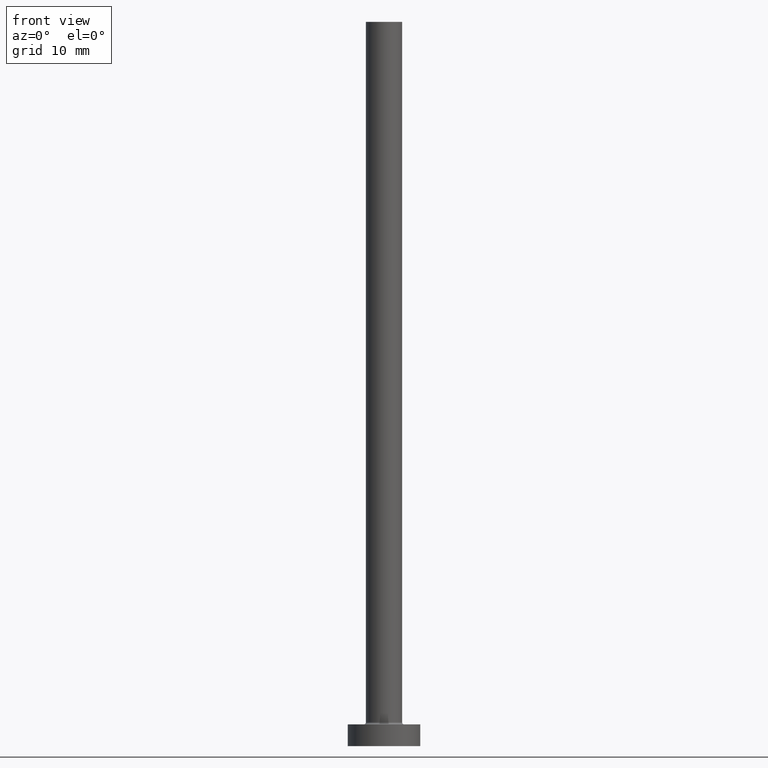
[diagram: clean part render]
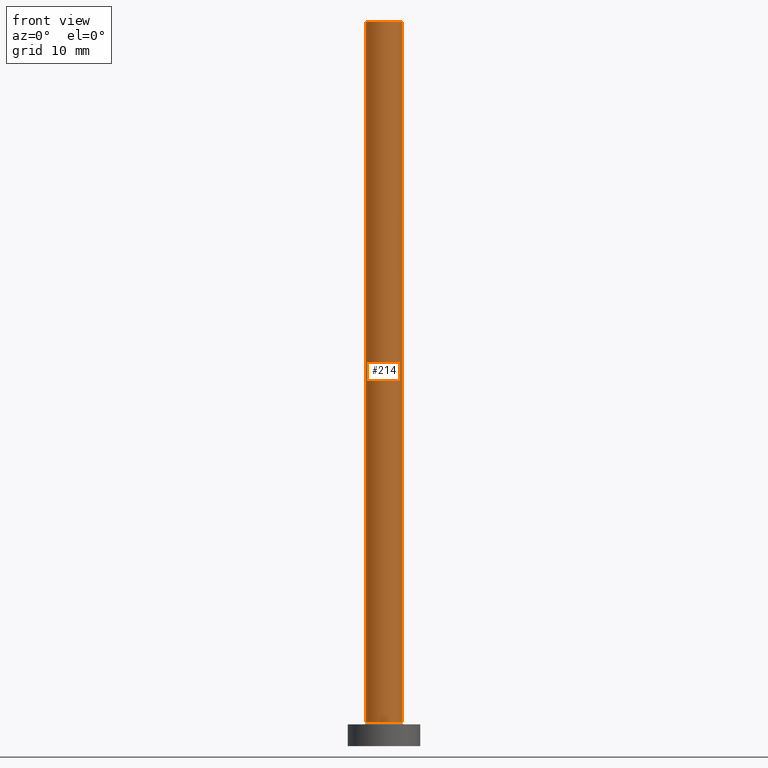
[diagram: same view with one face highlighted and labeled with its STEP entity id]
A machine part, front view. The second image highlights one B-rep face of the part: STEP entity #214.
In plain terms, the highlighted cylindrical surface (edge-blend (fillet) strip) has radius 2.5 mm, axis along (-0, -0, -1).
Its self-contained STEP definition (entity closure, byte-faithful):
#2 = CARTESIAN_POINT ( 'NONE',  ( 0.000000000000000000, 0.000000000000000000, 100.0000000000000000 ) ) ;
#32 = AXIS2_PLACEMENT_3D ( 'NONE', #457, #247, #215 ) ;
#47 = VERTEX_POINT ( 'NONE', #108 ) ;
#48 = LINE ( 'NONE', #84, #279 ) ;
#52 = DIRECTION ( 'NONE',  ( 1.000000000000000000, 0.000000000000000000, 0.000000000000000000 ) ) ;
#62 = AXIS2_PLACEMENT_3D ( 'NONE', #443, #161, #52 ) ;
#71 = FACE_OUTER_BOUND ( 'NONE', #266, .T. ) ;
#82 = ORIENTED_EDGE ( 'NONE', *, *, #388, .T. ) ;
#84 = CARTESIAN_POINT ( 'NONE',  ( -2.500000000000000000, 0.000000000000000000, 100.0000000000000000 ) ) ;
#108 = CARTESIAN_POINT ( 'NONE',  ( 2.500000000000000000, 3.061616997868382648E-16, 3.299999999999997158 ) ) ;
#110 = VERTEX_POINT ( 'NONE', #213 ) ;
#120 = CARTESIAN_POINT ( 'NONE',  ( 2.500000000000000000, 3.061616997868382648E-16, 100.0000000000000000 ) ) ;
#121 = VERTEX_POINT ( 'NONE', #357 ) ;
#146 = CYLINDRICAL_SURFACE ( 'NONE', #458, 2.500000000000000000 ) ;
#152 = DIRECTION ( 'NONE',  ( -0.000000000000000000, -0.000000000000000000, -1.000000000000000000 ) ) ;
#156 = LINE ( 'NONE', #120, #292 ) ;
#161 = DIRECTION ( 'NONE',  ( 0.000000000000000000, 0.000000000000000000, 1.000000000000000000 ) ) ;
#202 = VERTEX_POINT ( 'NONE', #283 ) ;
#209 = EDGE_CURVE ( 'NONE', #121, #110, #284, .T. ) ;
#213 = CARTESIAN_POINT ( 'NONE',  ( 2.500000000000000000, 3.061616997868382648E-16, 100.0000000000000000 ) ) ;
#214 = ADVANCED_FACE ( 'NONE', ( #71 ), #146, .T. ) ;
#215 = DIRECTION ( 'NONE',  ( 1.000000000000000000, 0.000000000000000000, 0.000000000000000000 ) ) ;
#228 = DIRECTION ( 'NONE',  ( -0.000000000000000000, -0.000000000000000000, -1.000000000000000000 ) ) ;
#247 = DIRECTION ( 'NONE',  ( 0.000000000000000000, 0.000000000000000000, 1.000000000000000000 ) ) ;
#255 = DIRECTION ( 'NONE',  ( -0.000000000000000000, -0.000000000000000000, -1.000000000000000000 ) ) ;
#266 = EDGE_LOOP ( 'NONE', ( #390, #385, #276, #82 ) ) ;
#276 = ORIENTED_EDGE ( 'NONE', *, *, #325, .T. ) ;
#279 = VECTOR ( 'NONE', #228, 1000.000000000000000 ) ;
#283 = CARTESIAN_POINT ( 'NONE',  ( -2.500000000000000000, 0.000000000000000000, 3.299999999999997158 ) ) ;
#284 = CIRCLE ( 'NONE', #32, 2.500000000000000000 ) ;
#285 = DIRECTION ( 'NONE',  ( -1.000000000000000000, 0.000000000000000000, 0.000000000000000000 ) ) ;
#292 = VECTOR ( 'NONE', #255, 1000.000000000000000 ) ;
#325 = EDGE_CURVE ( 'NONE', #121, #202, #48, .T. ) ;
#349 = CIRCLE ( 'NONE', #62, 2.500000000000000000 ) ;
#357 = CARTESIAN_POINT ( 'NONE',  ( -2.500000000000000000, 0.000000000000000000, 100.0000000000000000 ) ) ;
#358 = EDGE_CURVE ( 'NONE', #110, #47, #156, .T. ) ;
#385 = ORIENTED_EDGE ( 'NONE', *, *, #209, .F. ) ;
#388 = EDGE_CURVE ( 'NONE', #202, #47, #349, .T. ) ;
#390 = ORIENTED_EDGE ( 'NONE', *, *, #358, .F. ) ;
#443 = CARTESIAN_POINT ( 'NONE',  ( 0.000000000000000000, 0.000000000000000000, 3.299999999999997158 ) ) ;
#457 = CARTESIAN_POINT ( 'NONE',  ( 0.000000000000000000, 0.000000000000000000, 100.0000000000000000 ) ) ;
#458 = AXIS2_PLACEMENT_3D ( 'NONE', #2, #152, #285 ) ;